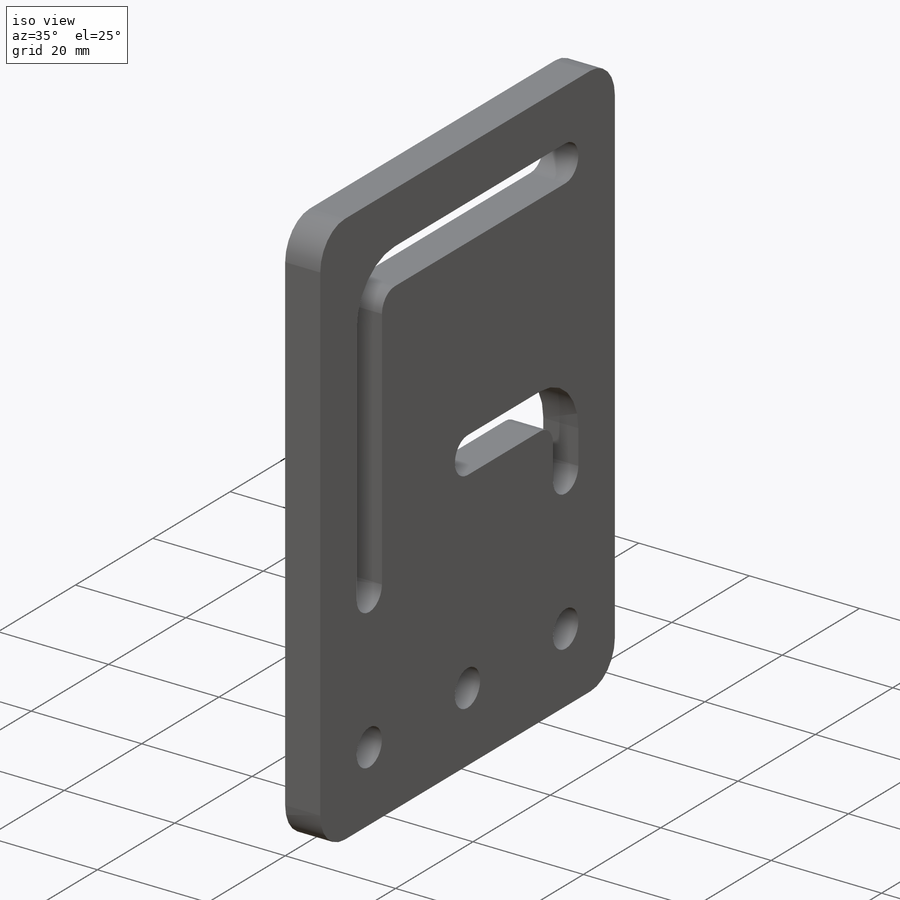
[diagram: iso view]
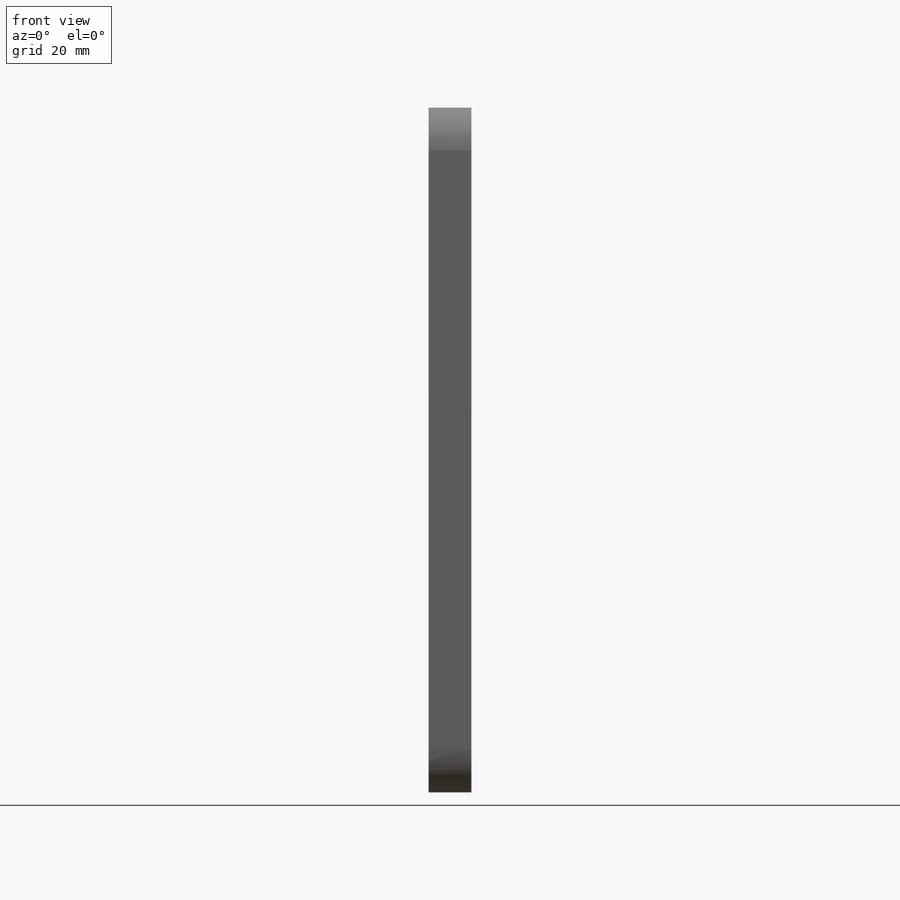
[diagram: front view]
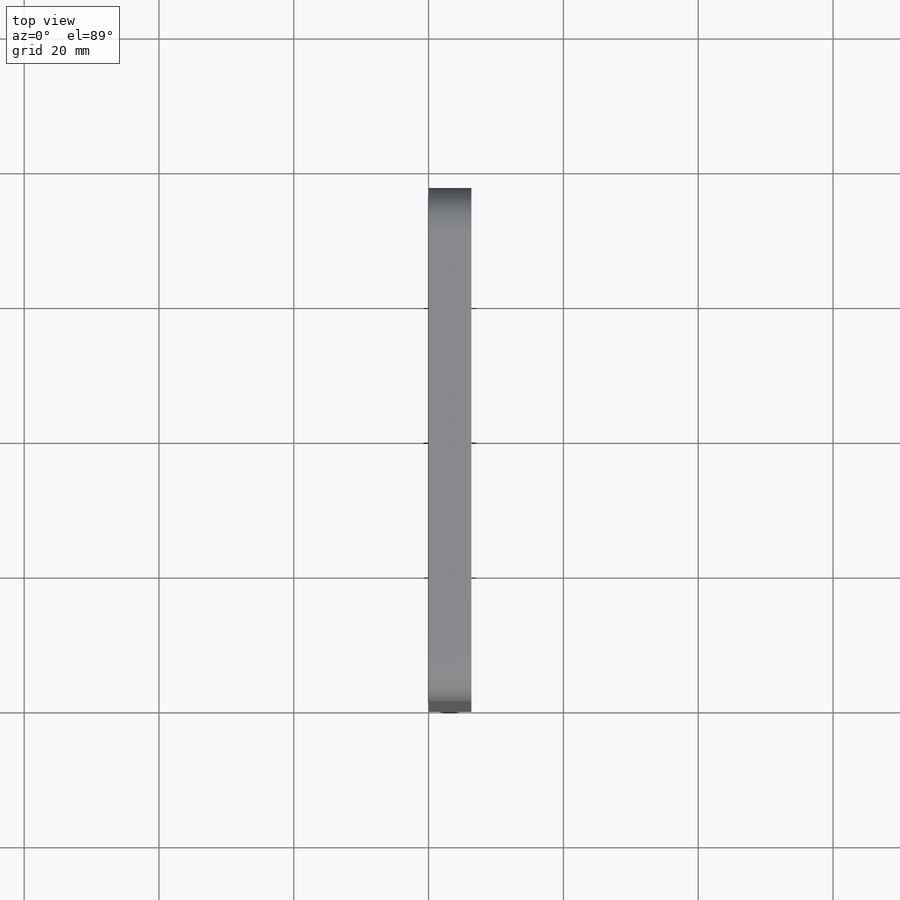
[diagram: top view]
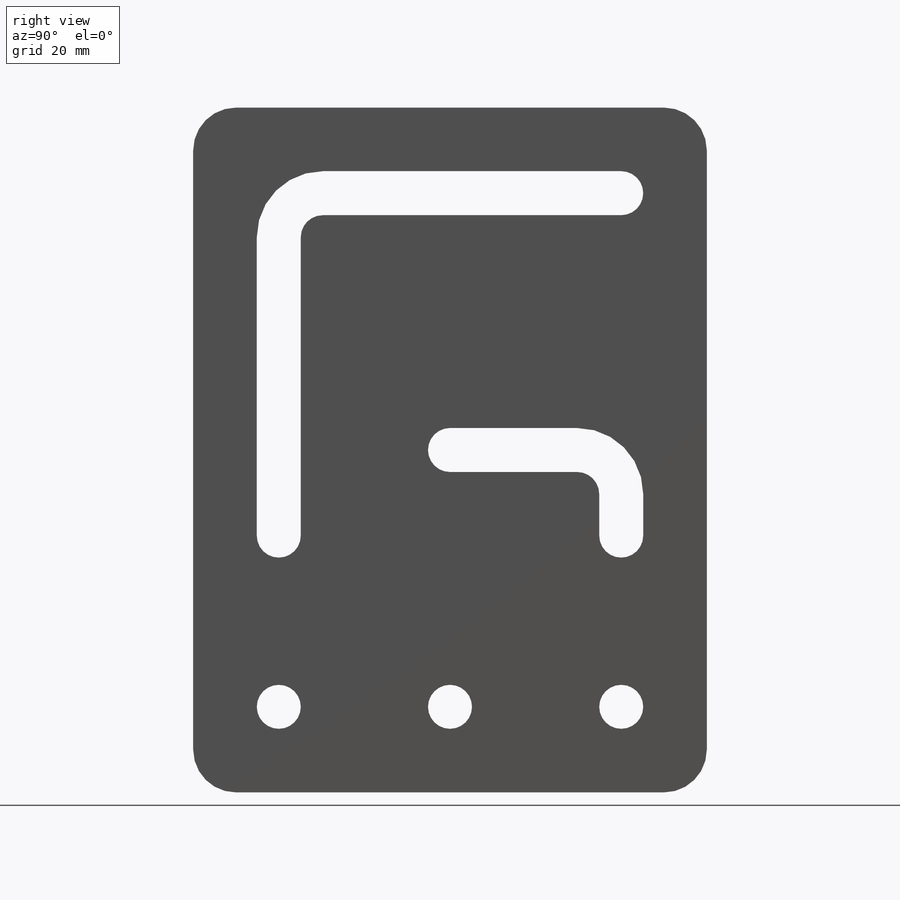
[diagram: right view]
SOLIDWORKS PART (.sldprt)
format: sldprt  version: not decoded by parser v0  size: 233,984 bytes
history: native  units: mm
features: fillet x3, material x1, sketch x1, extrude x1 (+13 scaffold rows collapsed)
feature tree (19):
  scaffold x13  (default folders/planes/origin — collapsed)
  material  "Material <not specified>"
  sketch  "Sketch1"  dims[c1.D3=6.5278mm c1.D8=~6.766662mm c1.D10=6.5278mm c1.D11=3.2639mm c1.D13=6.5278mm c1.D1=76.2mm c1.D2=101.6mm c1.D4=12.7mm c1.D5=12.7mm c1.D6=25.4mm c1.D7=12.7mm c2.D8=25.4mm c2.D9=12.7mm c2.D11=6.5278mm c2.D12=38.1mm c2.D14=6.5278mm]
  extrude  "Extrude1"  Depth=6.35mm
  fillet  "Fillet2"  Radius=3.2639mm
  fillet  "Fillet3"  Radius=9.7917mm
  fillet  "Fillet4"  Radius=6.35mm
decode coverage: 5 of 5 modeling features carry decoded parameters
note: ~ marks probable driven/reference dimensions
note: suppression state not decoded; provenance and decode notes live in map.json
